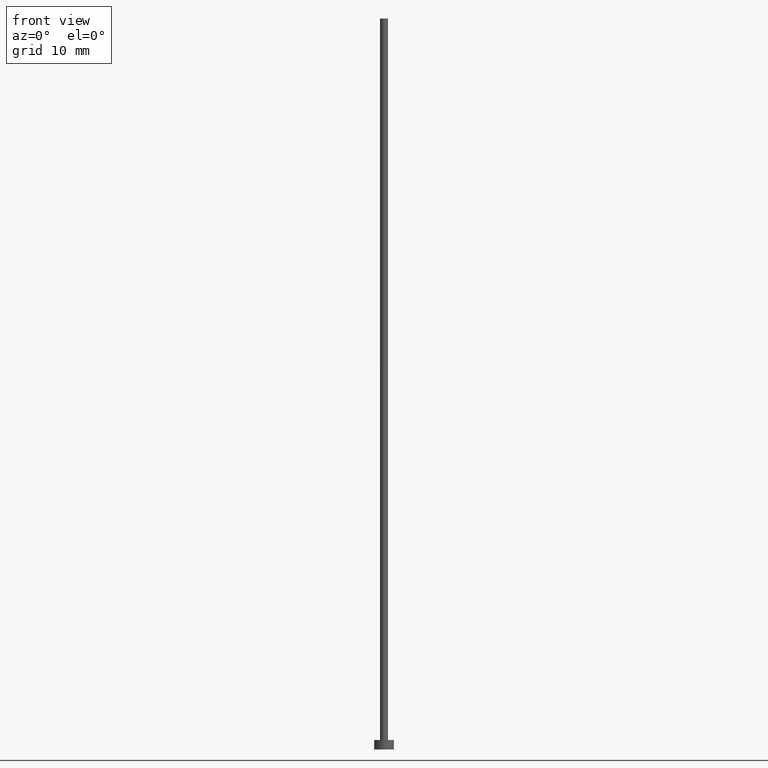
[diagram: clean part render]
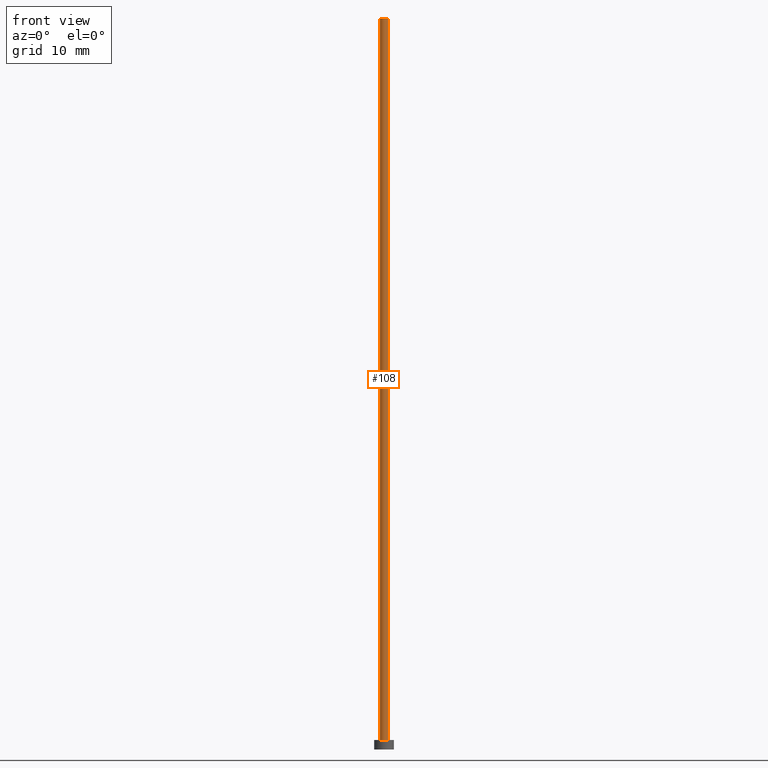
[diagram: same view with one face highlighted and labeled with its STEP entity id]
A machine part, front view. The second image highlights one B-rep face of the part: STEP entity #108.
In plain terms, the highlighted cylindrical surface (edge-blend (fillet) strip) has radius 0.5 mm, axis along (-0, -0, -1).
Its self-contained STEP definition (entity closure, byte-faithful):
#2 = DIRECTION ( 'NONE',  ( 0.000000000000000000, 0.000000000000000000, 1.000000000000000000 ) ) ;
#10 = CIRCLE ( 'NONE', #236, 0.5000000000000000000 ) ;
#23 = ORIENTED_EDGE ( 'NONE', *, *, #144, .T. ) ;
#27 = CARTESIAN_POINT ( 'NONE',  ( 0.000000000000000000, 0.000000000000000000, 92.50000000000000000 ) ) ;
#28 = DIRECTION ( 'NONE',  ( 0.000000000000000000, 0.000000000000000000, 1.000000000000000000 ) ) ;
#30 = CARTESIAN_POINT ( 'NONE',  ( 0.000000000000000000, 0.000000000000000000, 1.199999999999999956 ) ) ;
#55 = VERTEX_POINT ( 'NONE', #199 ) ;
#62 = CARTESIAN_POINT ( 'NONE',  ( 0.5000000000000000000, 6.123233995736766036E-17, 1.199999999999999956 ) ) ;
#64 = DIRECTION ( 'NONE',  ( 1.000000000000000000, 0.000000000000000000, 0.000000000000000000 ) ) ;
#72 = VERTEX_POINT ( 'NONE', #125 ) ;
#81 = ORIENTED_EDGE ( 'NONE', *, *, #187, .F. ) ;
#87 = DIRECTION ( 'NONE',  ( 1.000000000000000000, 0.000000000000000000, 0.000000000000000000 ) ) ;
#99 = VERTEX_POINT ( 'NONE', #62 ) ;
#103 = FACE_OUTER_BOUND ( 'NONE', #215, .T. ) ;
#104 = VECTOR ( 'NONE', #205, 1000.000000000000000 ) ;
#105 = CARTESIAN_POINT ( 'NONE',  ( 0.5000000000000000000, 6.123233995736766036E-17, 92.50000000000000000 ) ) ;
#108 = ADVANCED_FACE ( 'NONE', ( #103 ), #241, .T. ) ;
#113 = CIRCLE ( 'NONE', #192, 0.5000000000000000000 ) ;
#121 = LINE ( 'NONE', #240, #147 ) ;
#125 = CARTESIAN_POINT ( 'NONE',  ( 0.5000000000000000000, 6.123233995736766036E-17, 92.50000000000000000 ) ) ;
#144 = EDGE_CURVE ( 'NONE', #55, #217, #121, .T. ) ;
#147 = VECTOR ( 'NONE', #207, 1000.000000000000000 ) ;
#168 = LINE ( 'NONE', #105, #104 ) ;
#169 = EDGE_CURVE ( 'NONE', #217, #99, #10, .T. ) ;
#179 = CARTESIAN_POINT ( 'NONE',  ( -0.5000000000000000000, 0.000000000000000000, 1.199999999999999956 ) ) ;
#182 = DIRECTION ( 'NONE',  ( -1.000000000000000000, 0.000000000000000000, 0.000000000000000000 ) ) ;
#183 = AXIS2_PLACEMENT_3D ( 'NONE', #238, #225, #182 ) ;
#187 = EDGE_CURVE ( 'NONE', #72, #99, #168, .T. ) ;
#192 = AXIS2_PLACEMENT_3D ( 'NONE', #27, #2, #87 ) ;
#199 = CARTESIAN_POINT ( 'NONE',  ( -0.5000000000000000000, 0.000000000000000000, 92.50000000000000000 ) ) ;
#205 = DIRECTION ( 'NONE',  ( -0.000000000000000000, -0.000000000000000000, -1.000000000000000000 ) ) ;
#207 = DIRECTION ( 'NONE',  ( -0.000000000000000000, -0.000000000000000000, -1.000000000000000000 ) ) ;
#215 = EDGE_LOOP ( 'NONE', ( #81, #232, #23, #235 ) ) ;
#217 = VERTEX_POINT ( 'NONE', #179 ) ;
#220 = EDGE_CURVE ( 'NONE', #55, #72, #113, .T. ) ;
#225 = DIRECTION ( 'NONE',  ( -0.000000000000000000, -0.000000000000000000, -1.000000000000000000 ) ) ;
#232 = ORIENTED_EDGE ( 'NONE', *, *, #220, .F. ) ;
#235 = ORIENTED_EDGE ( 'NONE', *, *, #169, .T. ) ;
#236 = AXIS2_PLACEMENT_3D ( 'NONE', #30, #28, #64 ) ;
#238 = CARTESIAN_POINT ( 'NONE',  ( 0.000000000000000000, 0.000000000000000000, 92.50000000000000000 ) ) ;
#240 = CARTESIAN_POINT ( 'NONE',  ( -0.5000000000000000000, 0.000000000000000000, 92.50000000000000000 ) ) ;
#241 = CYLINDRICAL_SURFACE ( 'NONE', #183, 0.5000000000000000000 ) ;